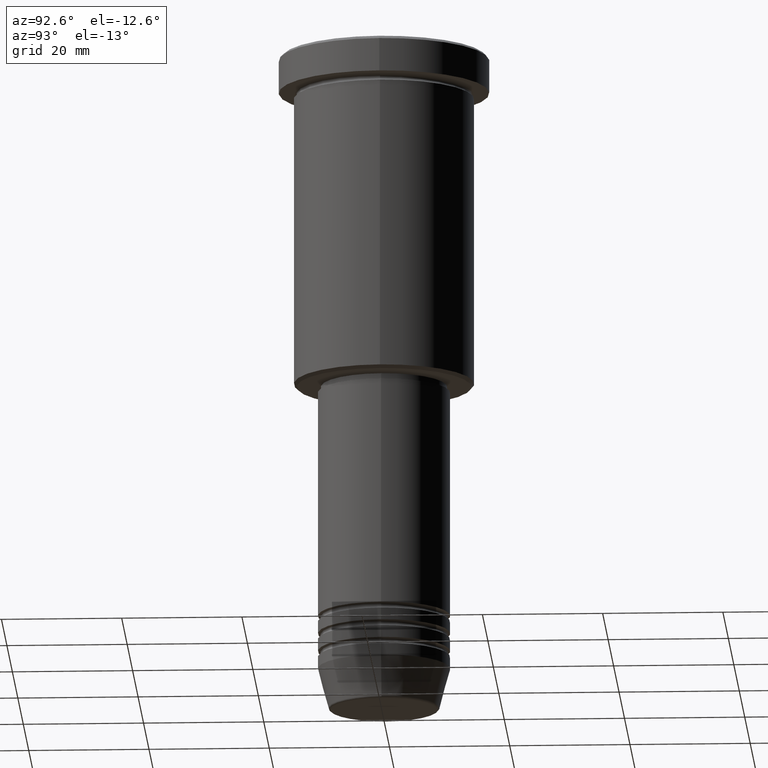
[diagram: clean part render]
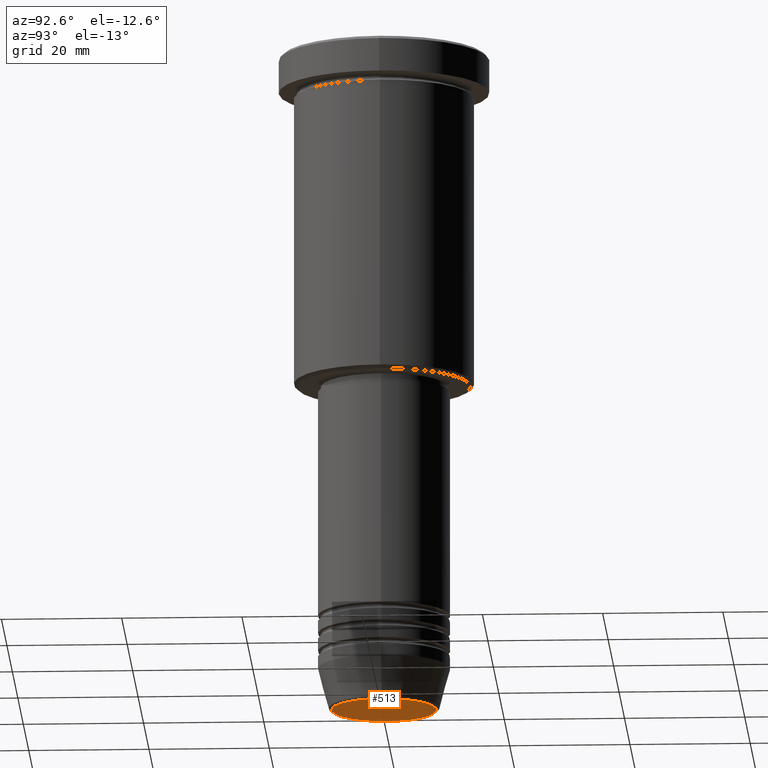
[diagram: same view with one face highlighted and labeled with its STEP entity id]
A machine part, auxiliary view. The second image highlights one B-rep face of the part: STEP entity #513.
In plain terms, the highlighted planar face has unit normal (0, -0, 1).
Its self-contained STEP definition (entity closure, byte-faithful):
#62 = CARTESIAN_POINT ( 'NONE',  ( -8.740692158992656502, 1.099999016768739653E-15, -111.0000000000000000 ) ) ;
#91 = CIRCLE ( 'NONE', #964, 8.740692158992656502 ) ;
#204 = DIRECTION ( 'NONE',  ( 1.000000000000000000, 0.000000000000000000, 0.000000000000000000 ) ) ;
#214 = DIRECTION ( 'NONE',  ( 0.000000000000000000, 0.000000000000000000, -1.000000000000000000 ) ) ;
#283 = AXIS2_PLACEMENT_3D ( 'NONE', #588, #426, #508 ) ;
#314 = PLANE ( 'NONE',  #283 ) ;
#384 = CARTESIAN_POINT ( 'NONE',  ( 0.000000000000000000, 0.000000000000000000, -111.0000000000000000 ) ) ;
#426 = DIRECTION ( 'NONE',  ( 0.000000000000000000, -0.000000000000000000, 1.000000000000000000 ) ) ;
#468 = CARTESIAN_POINT ( 'NONE',  ( 0.000000000000000000, 0.000000000000000000, -111.0000000000000000 ) ) ;
#474 = CIRCLE ( 'NONE', #619, 8.740692158992656502 ) ;
#478 = VERTEX_POINT ( 'NONE', #1025 ) ;
#508 = DIRECTION ( 'NONE',  ( 1.000000000000000000, 0.000000000000000000, 0.000000000000000000 ) ) ;
#513 = ADVANCED_FACE ( 'NONE', ( #1103 ), #314, .F. ) ;
#515 = ORIENTED_EDGE ( 'NONE', *, *, #899, .T. ) ;
#568 = EDGE_LOOP ( 'NONE', ( #515, #573 ) ) ;
#569 = VERTEX_POINT ( 'NONE', #62 ) ;
#573 = ORIENTED_EDGE ( 'NONE', *, *, #843, .T. ) ;
#588 = CARTESIAN_POINT ( 'NONE',  ( 0.000000000000000000, 0.000000000000000000, -111.0000000000000000 ) ) ;
#619 = AXIS2_PLACEMENT_3D ( 'NONE', #468, #1182, #1091 ) ;
#843 = EDGE_CURVE ( 'NONE', #569, #478, #91, .T. ) ;
#899 = EDGE_CURVE ( 'NONE', #478, #569, #474, .T. ) ;
#964 = AXIS2_PLACEMENT_3D ( 'NONE', #384, #214, #204 ) ;
#1025 = CARTESIAN_POINT ( 'NONE',  ( 8.740692158992656502, 0.000000000000000000, -111.0000000000000000 ) ) ;
#1091 = DIRECTION ( 'NONE',  ( 1.000000000000000000, 0.000000000000000000, 0.000000000000000000 ) ) ;
#1103 = FACE_OUTER_BOUND ( 'NONE', #568, .T. ) ;
#1182 = DIRECTION ( 'NONE',  ( 0.000000000000000000, 0.000000000000000000, -1.000000000000000000 ) ) ;